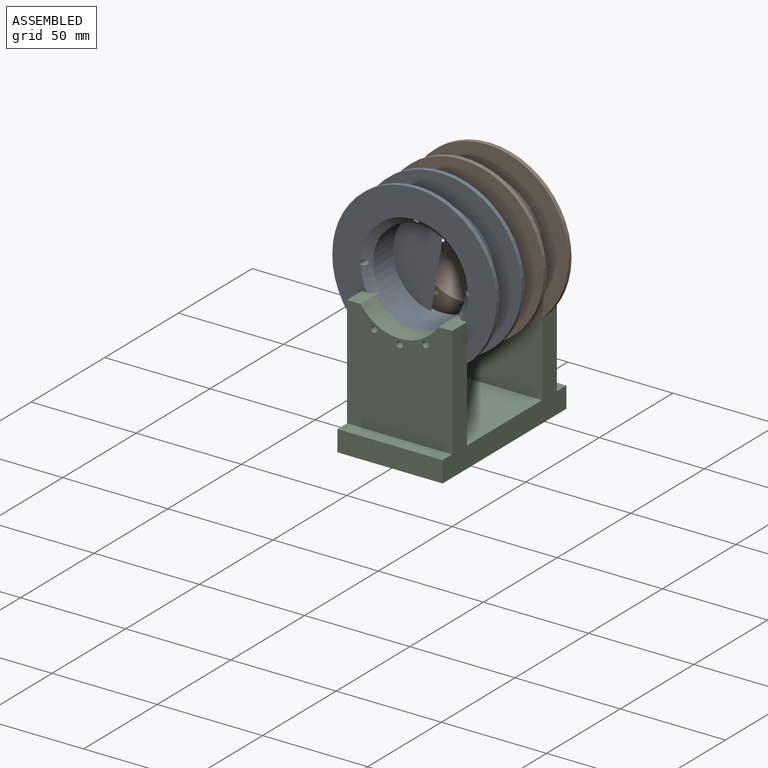
[diagram: assembled view]
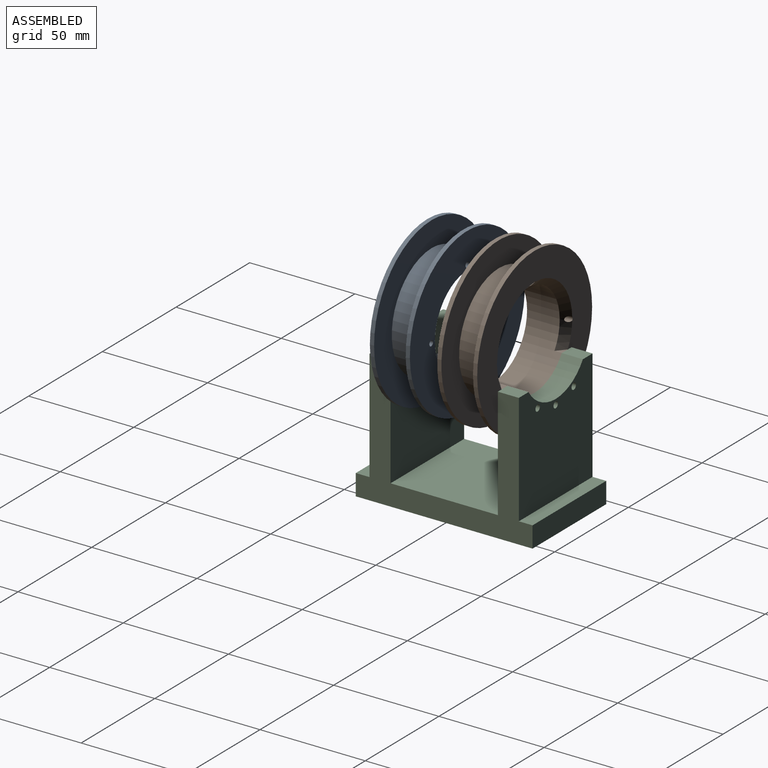
[diagram: assembled view, second angle]
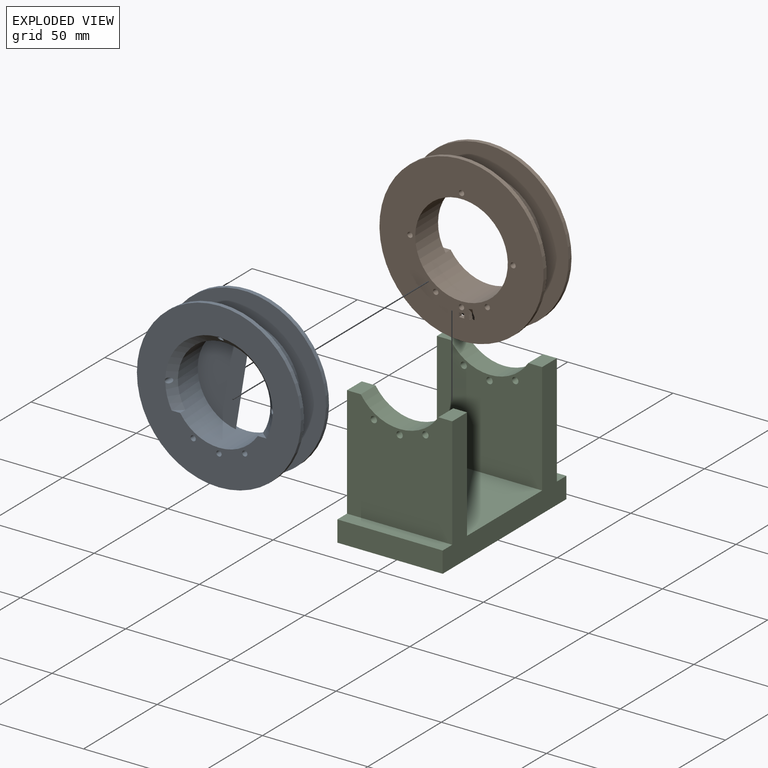
[diagram: exploded view]
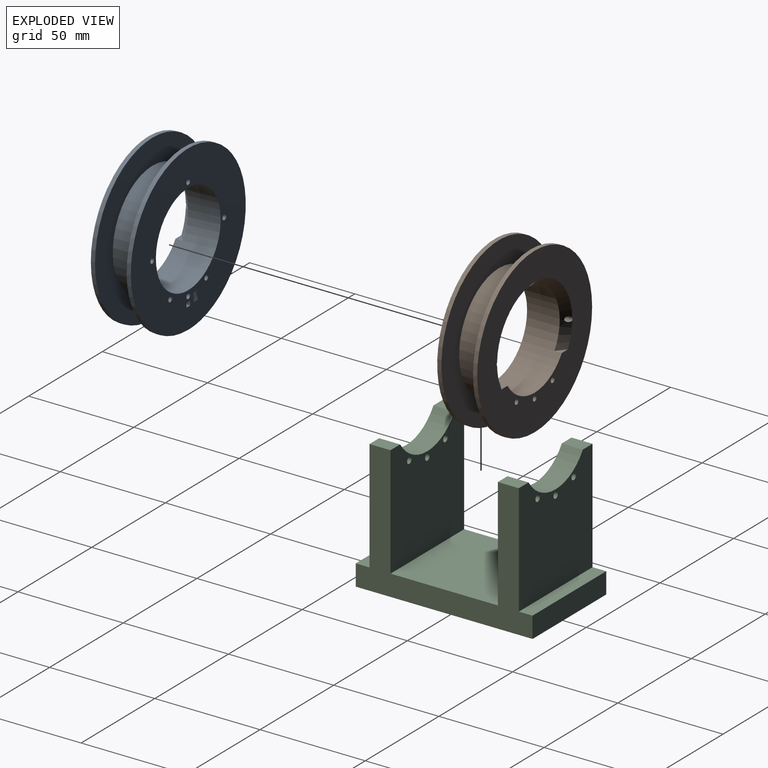
[diagram: exploded view, second angle]
ASSEMBLY  parts=3 mates=3
PART A: 33 faces, bbox 78.2x19.2x78.2 mm
  f0: plane 1.24x0.76mm, normal (0.17,0,0.98), area 0.1mm2, adj f2,f4,f19,f27,f28
  f1: plane 1.24x0.76mm, normal (0.17,0,0.98), area 0.1mm2, adj f2,f4,f18,f27,f29
  f2: plane 78x78mm, normal (0,1,0), area 3213.8mm2, adj f0,f1,f3,f5,f10,f11,f12,f13
  f3: plane 2.51x2.05mm, normal (-0.17,0,-0.98), area 1.1mm2, adj f2,f18,f19,f24,f30,f31,f32
  f4: plane 10.26x4.2mm, normal (0,-1,0), area 20.1mm2, adj f0,f1,f5,f18,f19,f27,f28,f29
  f5: cylinder r=39mm len=78mm, axis (0,1,0), area 487mm2, adj f2,f4,f18,f19,f24
  f6: plane 78x78mm, normal (0,-1,0), area 2893.1mm2, adj f7,f8,f9,f10,f11,f12,f13,f14
  f7: plane 4.23x3.67mm, normal (0,0,1), area 7.2mm2, adj f6,f9,f10
  f8: plane 4.23x3.67mm, normal (0,0,1), area 7.2mm2, adj f6,f9,f10
  f9: cone r=22mm half-angle=45deg, axis (0,-1,0), area 474.7mm2, adj f6,f7,f8,f10,f11,f12,f13
  f10: cylinder r=22mm len=44mm, axis (0,1,0), area 2295.6mm2, adj f2,f6,f7,f8,f9
  f11: cylinder r=1.25mm len=19mm, axis (0,-1,0), area 141.2mm2, adj f2,f6,f9
  f12: cylinder r=1.25mm len=19mm, axis (0,-1,0), area 141.2mm2, adj f2,f6,f9
  f13: cylinder r=1.25mm len=19mm, axis (0,-1,0), area 141.2mm2, adj f2,f6,f9
  f14: cylinder r=39mm len=78mm, axis (0,1,0), area 490.1mm2, adj f6,f26
  f15: cylinder r=1.25mm len=19mm, axis (0,-1,0), area 149.2mm2, adj f2,f6
  f16: cylinder r=1.25mm len=19mm, axis (0,-1,0), area 149.2mm2, adj f2,f6
  f17: cylinder r=1.25mm len=19mm, axis (0,-1,0), area 149.2mm2, adj f2,f6
  f18: plane 11.8x2.08mm, normal (-0.98,0,0.17), area 16.5mm2, adj f1,f2,f3,f4,f5,f24
  f19: plane 11.8x2.08mm, normal (0.98,0,-0.17), area 16.5mm2, adj f0,f2,f3,f4,f5,f24
  f20: plane 2.5x2mm, normal (0,0,-1), area 5mm2, adj f2,f21,f23,f24
  f21: plane 2x2mm, normal (1,0,0), area 4mm2, adj f2,f20,f22,f24
  f22: plane 2.5x2mm, normal (0,0,1), area 5mm2, adj f2,f21,f23,f24
  f23: plane 2x2mm, normal (-1,0,0), area 4mm2, adj f2,f20,f22,f24
  f24: plane 78x78mm, normal (0,-1,0), area 2453.2mm2, adj f3,f5,f18,f19,f20,f21,f22,f23
  f25: cylinder r=27mm len=54mm, axis (0,1,0), area 2544.7mm2, adj f24,f26
  f26: plane 78x78mm, normal (0,1,0), area 2488.1mm2, adj f14,f25
  f27: cone r=29mm half-angle=71.2deg, axis (0,-1,0), area 5.1mm2, adj f0,f1,f4,f28,f29
  f28: plane 2.13x0.74mm, normal (0.98,0,-0.21), area 0.8mm2, adj f0,f4,f27
  f29: plane 2.16x0.74mm, normal (-0.99,0,0.14), area 0.8mm2, adj f1,f4,f27
  f30: cone r=24.6mm half-angle=51deg, axis (0,-1,0), area 5.9mm2, adj f2,f3,f31,f32
  f31: plane 2.36x1.96mm, normal (0.98,0,-0.21), area 2.4mm2, adj f2,f3,f30
  f32: plane 2.4x1.96mm, normal (-0.99,0,0.14), area 2.4mm2, adj f2,f3,f30
PART B: same geometry as A
PART C: 24 faces, bbox 50x84x63 mm
  f0: cylinder r=22mm len=36.88mm, axis (0,1,0), area 437.3mm2, adj f1,f2,f7,f9
  f1: plane 53x50mm, normal (0,-1,0), area 2369mm2, adj f0,f3,f4,f5,f6,f7,f8,f9
  f2: plane 53x50mm, normal (0,1,0), area 2369mm2, adj f0,f3,f4,f5,f6,f7,f8,f9
  f3: cylinder r=1.5mm len=10mm, axis (0,1,0), area 94.2mm2, adj f1,f2
  f4: cylinder r=1.5mm len=10mm, axis (0,1,0), area 94.2mm2, adj f1,f2
  f5: cylinder r=1.5mm len=10mm, axis (0,1,0), area 94.2mm2, adj f1,f2
  f6: plane 84x63mm, normal (1,0,0), area 1900mm2, adj f1,f2,f7,f10,f12,f13,f17,f19
  f7: plane 10x6.56mm, normal (0,0,1), area 65.6mm2, adj f0,f1,f2,f6
  f8: plane 84x63mm, normal (-1,0,0), area 1900mm2, adj f1,f2,f9,f10,f12,f13,f18,f19
  f9: plane 10x6.56mm, normal (0,0,1), area 65.6mm2, adj f0,f1,f2,f8
  f10: plane 50x6.5mm, normal (0,0,1), area 325mm2, adj f1,f6,f8,f20
  f11: cylinder r=22mm len=36.88mm, axis (0,-1,0), area 437.3mm2, adj f12,f13,f17,f18
  f12: plane 53x50mm, normal (0,1,0), area 2369mm2, adj f6,f8,f11,f14,f15,f16,f17,f18
  f13: plane 53x50mm, normal (0,-1,0), area 2369mm2, adj f6,f8,f11,f14,f15,f16,f17,f18
  f14: cylinder r=1.5mm len=10mm, axis (0,-1,0), area 94.2mm2, adj f12,f13
  f15: cylinder r=1.5mm len=10mm, axis (0,-1,0), area 94.2mm2, adj f12,f13
  f16: cylinder r=1.5mm len=10mm, axis (0,-1,0), area 94.2mm2, adj f12,f13
  f17: plane 10x6.56mm, normal (0,0,1), area 65.6mm2, adj f6,f11,f12,f13
  f18: plane 10x6.56mm, normal (0,0,1), area 65.6mm2, adj f8,f11,f12,f13
  f19: plane 51x50mm, normal (0,0,1), area 2550mm2, adj f2,f6,f8,f13
  f20: plane 50x10mm, normal (0,-1,0), area 500mm2, adj f6,f8,f10,f21
  f21: plane 84x50mm, normal (0,0,-1), area 4200mm2, adj f6,f8,f20,f22
  f22: plane 50x10mm, normal (0,1,0), area 500mm2, adj f6,f8,f21,f23
  f23: plane 50x6.5mm, normal (0,0,1), area 325mm2, adj f6,f8,f12,f22
PLACE A t=(0,-6.5,0)mm
PLACE B rot(axis=(0,0,1),180deg) t=(0,6.5,0)mm
PLACE C at identity
MATE pin_slot A.f15 <-> C.f3  axis (0,-1,0) through (0,-25.5,-24.5)mm
MATE pin_slot B.f15 <-> C.f3  axis (0,1,0) through (0,25.5,-24.5)mm
MATE parallel A.f15 <-> C.f3  axis (0,-1,0) through (0,-25.5,-24.5)mm
